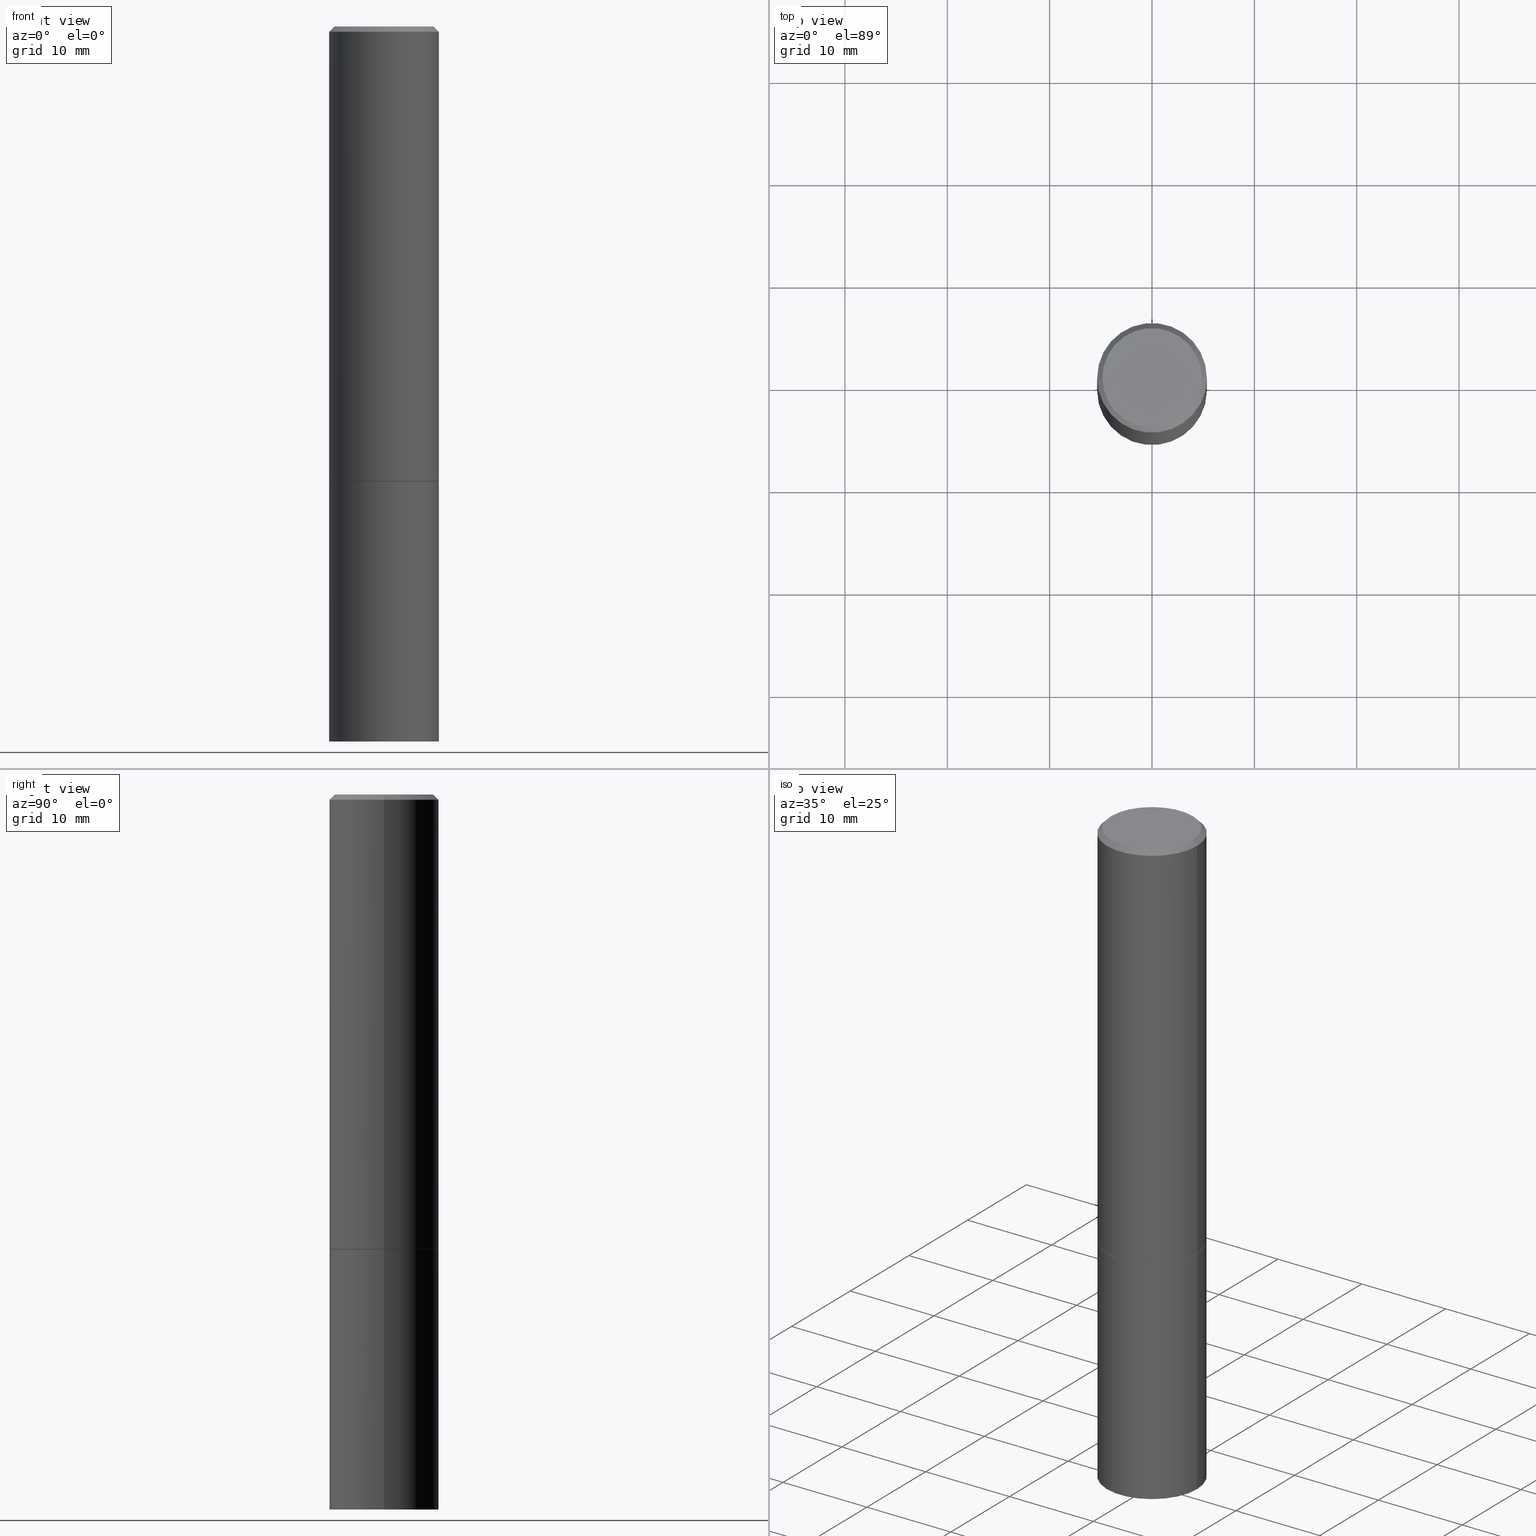
[diagram: canonical four-view strip — front | top / right | iso, engineering-drawing reading convention]
A machine part, canonical four-view strip (front | top / right | iso — engineering-drawing reading convention). The complete STEP part file that produces these views, byte-faithful:
ISO-10303-21;
HEADER;
FILE_DESCRIPTION (( 'STEP AP203' ),
    '1' );
FILE_NAME ('39153.STEP',
    '2023-03-21T20:59:00',
    ( '' ),
    ( '' ),
    'SwSTEP 2.0',
    'SolidWorks 2022',
    '' );
FILE_SCHEMA (( 'CONFIG_CONTROL_DESIGN' ));
ENDSEC;

DATA;
#1 = CARTESIAN_POINT ( 'NONE',  ( 4.279570410823989044E-29, -6.110092342975505460E-15, -1.750000000000000222 ) ) ;
#2 = VECTOR ( 'NONE', #273, 39.37007874015748143 ) ;
#3 = EDGE_CURVE ( 'NONE', #247, #153, #149, .T. ) ;
#4 = EDGE_CURVE ( 'NONE', #153, #339, #309, .T. ) ;
#5 = DIRECTION ( 'NONE',  ( 1.000000000000000000, -6.982962677686266711E-15, 0.000000000000000000 ) ) ;
#6 = FACE_OUTER_BOUND ( 'NONE', #129, .T. ) ;
#7 = ORIENTED_EDGE ( 'NONE', *, *, #42, .F. ) ;
#8 = CARTESIAN_POINT ( 'NONE',  ( 0.000000000000000000, 0.000000000000000000, 0.000000000000000000 ) ) ;
#9 = AXIS2_PLACEMENT_3D ( 'NONE', #161, #134, #379 ) ;
#10 = APPROVAL_DATE_TIME ( #366, #45 ) ;
#11 = DATE_AND_TIME ( #330, #357 ) ;
#12 = CARTESIAN_POINT ( 'NONE',  ( 0.000000000000000000, 0.000000000000000000, 0.000000000000000000 ) ) ;
#13 = MECHANICAL_CONTEXT ( 'NONE', #363, 'mechanical' ) ;
#14 = ORIENTED_EDGE ( 'NONE', *, *, #124, .F. ) ;
#15 = CIRCLE ( 'NONE', #268, 0.1909499999999998143 ) ;
#16 = LOCAL_TIME ( 16, 59, 0.000000000000000000, #68 ) ;
#17 = EDGE_CURVE ( 'NONE', #157, #35, #105, .T. ) ;
#18 = FACE_OUTER_BOUND ( 'NONE', #99, .T. ) ;
#19 = ORIENTED_EDGE ( 'NONE', *, *, #317, .T. ) ;
#20 = DIRECTION ( 'NONE',  ( 1.000000000000000000, -6.982962677686266711E-15, 0.000000000000000000 ) ) ;
#21 = AXIS2_PLACEMENT_3D ( 'NONE', #250, #346, #321 ) ;
#22 = FACE_OUTER_BOUND ( 'NONE', #66, .T. ) ;
#23 = DIRECTION ( 'NONE',  ( 1.000000000000000000, -6.982962677686265922E-15, 0.000000000000000000 ) ) ;
#24 = DIRECTION ( 'NONE',  ( 2.445468806185136597E-29, -3.491481338843145583E-15, -1.000000000000000000 ) ) ;
#25 = ADVANCED_FACE ( 'NONE', ( #18 ), #315, .T. ) ;
#26 = DIRECTION ( 'NONE',  ( -2.445468806185136597E-29, 3.491481338843145583E-15, 1.000000000000000000 ) ) ;
#27 = UNCERTAINTY_MEASURE_WITH_UNIT (LENGTH_MEASURE( 1.000000000000000082E-05 ), #390, 'distance_accuracy_value', 'NONE');
#28 = ORIENTED_EDGE ( 'NONE', *, *, #298, .T. ) ;
#29 = DIRECTION ( 'NONE',  ( 1.000000000000000000, -6.982962677686266711E-15, 0.000000000000000000 ) ) ;
#30 = EDGE_CURVE ( 'NONE', #35, #214, #304, .T. ) ;
#31 = DIRECTION ( 'NONE',  ( 2.438088387897960049E-29, -3.491481338843145188E-15, -1.000000000000000000 ) ) ;
#32 = CIRCLE ( 'NONE', #21, 0.2109499999999999986 ) ;
#33 = ORIENTED_EDGE ( 'NONE', *, *, #253, .T. ) ;
#34 = DIRECTION ( 'NONE',  ( 1.000000000000000000, -6.982962677686265922E-15, 0.000000000000000000 ) ) ;
#35 = VERTEX_POINT ( 'NONE', #92 ) ;
#36 = DIRECTION ( 'NONE',  ( -2.445468806185136597E-29, 3.491481338843145583E-15, 1.000000000000000000 ) ) ;
#37 = PERSON_AND_ORGANIZATION_ROLE ( 'classification_officer' ) ;
#38 = APPROVAL ( #272, 'UNSPECIFIED' ) ;
#39 = ADVANCED_BREP_SHAPE_REPRESENTATION ( '39153', ( #219, #365, #135 ), #233 ) ;
#40 = VECTOR ( 'NONE', #361, 39.37007874015748143 ) ;
#41 = SECURITY_CLASSIFICATION_LEVEL ( 'unclassified' ) ;
#42 = EDGE_CURVE ( 'NONE', #103, #170, #152, .T. ) ;
#43 = CARTESIAN_POINT ( 'NONE',  ( -0.2109499999999999154, 1.498889901085930741E-15, -1.037649357289271961E-29 ) ) ;
#44 = APPROVAL_STATUS ( 'not_yet_approved' ) ;
#45 = APPROVAL ( #212, 'UNSPECIFIED' ) ;
#46 = ORIENTED_EDGE ( 'NONE', *, *, #253, .F. ) ;
#47 = APPROVAL_ROLE ( '' ) ;
#48 = ORIENTED_EDGE ( 'NONE', *, *, #242, .F. ) ;
#49 = AXIS2_PLACEMENT_3D ( 'NONE', #160, #26, #108 ) ;
#50 = CARTESIAN_POINT ( 'NONE',  ( 0.000000000000000000, 0.000000000000000000, 0.000000000000000000 ) ) ;
#51 = CARTESIAN_POINT ( 'NONE',  ( -0.2109499999999999986, -1.589325343120829965E-15, -1.748999999999999888 ) ) ;
#52 = CARTESIAN_POINT ( 'NONE',  ( 1.029763029858249130E-27, -1.470228691156104013E-13, -42.10902331911772478 ) ) ;
#53 = AXIS2_PLACEMENT_3D ( 'NONE', #75, #352, #140 ) ;
#54 = CARTESIAN_POINT ( 'NONE',  ( 1.333396723304191166E-15, 0.1909499999999998143, -6.666983616520979495E-16 ) ) ;
#55 = CARTESIAN_POINT ( 'NONE',  ( 4.279570410823988484E-29, -6.110092342975504671E-15, -1.750000000000000000 ) ) ;
#56 = EDGE_CURVE ( 'NONE', #96, #267, #77, .T. ) ;
#57 = CARTESIAN_POINT ( 'NONE',  ( 0.2109499999999998321, -1.104879573444855385E-14, -2.750000000000000000 ) ) ;
#58 = DIRECTION ( 'NONE',  ( 0.7071067811864267805, -2.468850131080992517E-15, 0.7071067811866682540 ) ) ;
#59 = CARTESIAN_POINT ( 'NONE',  ( 6.725039217009124520E-29, -9.601573681818649859E-15, -2.750000000000000000 ) ) ;
#60 = PLANE ( 'NONE',  #305 ) ;
#61 = CIRCLE ( 'NONE', #118, 0.2109499999999998043 ) ;
#62 = DIRECTION ( 'NONE',  ( 1.000000000000000000, -6.982962677686266711E-15, 0.000000000000000000 ) ) ;
#63 = CARTESIAN_POINT ( 'NONE',  ( 0.1909499999999998143, -1.413531886040619524E-15, 9.604942887381093528E-30 ) ) ;
#64 = CC_DESIGN_DATE_AND_TIME_ASSIGNMENT ( #332, #180, ( #223 ) ) ;
#65 = PERSON_AND_ORGANIZATION_ROLE ( 'design_supplier' ) ;
#66 = EDGE_LOOP ( 'NONE', ( #278, #281 ) ) ;
#67 = ORIENTED_EDGE ( 'NONE', *, *, #213, .F. ) ;
#68 = COORDINATED_UNIVERSAL_TIME_OFFSET ( 5, 0, .BEHIND. ) ;
#69 = ADVANCED_FACE ( 'NONE', ( #22 ), #224, .F. ) ;
#70 = PERSON_AND_ORGANIZATION ( #300, #179 ) ;
#71 = ORIENTED_EDGE ( 'NONE', *, *, #376, .F. ) ;
#72 = ORIENTED_EDGE ( 'NONE', *, *, #276, .T. ) ;
#73 = FACE_OUTER_BOUND ( 'NONE', #378, .T. ) ;
#74 = LINE ( 'NONE', #119, #156 ) ;
#75 = CARTESIAN_POINT ( 'NONE',  ( 1.029763029858249130E-27, -1.470228691156104013E-13, -42.10902331911772478 ) ) ;
#76 = AXIS2_PLACEMENT_3D ( 'NONE', #50, #159, #284 ) ;
#77 = CIRCLE ( 'NONE', #226, 0.1909499999999998143 ) ;
#78 = ADVANCED_FACE ( 'NONE', ( #165 ), #167, .T. ) ;
#79 = CARTESIAN_POINT ( 'NONE',  ( 4.279570410823988484E-29, -6.110092342975504671E-15, -1.750000000000000000 ) ) ;
#80 = CARTESIAN_POINT ( 'NONE',  ( 4.890937612370285420E-31, -6.982962677686308865E-17, -0.02000000000000005246 ) ) ;
#81 = LINE ( 'NONE', #287, #384 ) ;
#82 = LINE ( 'NONE', #294, #255 ) ;
#83 = ORIENTED_EDGE ( 'NONE', *, *, #213, .T. ) ;
#84 = VECTOR ( 'NONE', #58, 39.37007874015748143 ) ;
#85 = CC_DESIGN_APPROVAL ( #45, ( #274 ) ) ;
#86 = LINE ( 'NONE', #264, #356 ) ;
#87 = ORIENTED_EDGE ( 'NONE', *, *, #30, .F. ) ;
#88 = DIRECTION ( 'NONE',  ( -1.000000000000000000, 6.982962677686265922E-15, -4.876176775795935793E-29 ) ) ;
#89 = ORIENTED_EDGE ( 'NONE', *, *, #115, .T. ) ;
#90 = DIRECTION ( 'NONE',  ( -2.445468806185136597E-29, 3.491481338843145583E-15, 1.000000000000000000 ) ) ;
#91 = ORIENTED_EDGE ( 'NONE', *, *, #4, .T. ) ;
#92 = CARTESIAN_POINT ( 'NONE',  ( -0.2109499999999999986, -6.356943111311146524E-15, -1.750000000000000000 ) ) ;
#93 = AXIS2_PLACEMENT_3D ( 'NONE', #136, #117, #23 ) ;
#94 = CARTESIAN_POINT ( 'NONE',  ( -0.2109499999999998043, 1.403226350081053478E-15, -0.02000000000000005246 ) ) ;
#95 = ADVANCED_FACE ( 'NONE', ( #319 ), #350, .F. ) ;
#96 = VERTEX_POINT ( 'NONE', #383 ) ;
#97 = ORIENTED_EDGE ( 'NONE', *, *, #173, .T. ) ;
#98 = PERSON_AND_ORGANIZATION_ROLE ( 'creator' ) ;
#99 = EDGE_LOOP ( 'NONE', ( #310, #91, #67, #71 ) ) ;
#100 = ADVANCED_FACE ( 'NONE', ( #73 ), #101, .T. ) ;
#101 = CONICAL_SURFACE ( 'NONE', #93, 0.2099499999999999977, 0.7853981633972775267 ) ;
#102 = LOCAL_TIME ( 16, 59, 0.000000000000000000, #206 ) ;
#103 = VERTEX_POINT ( 'NONE', #288 ) ;
#104 = APPROVAL_ROLE ( '' ) ;
#105 = LINE ( 'NONE', #184, #194 ) ;
#106 = CARTESIAN_POINT ( 'NONE',  ( 1.871583227373026595E-19, -9.562973885565287622E-15, -2.738944578960243792 ) ) ;
#107 = EDGE_LOOP ( 'NONE', ( #7, #364, #48 ) ) ;
#108 = DIRECTION ( 'NONE',  ( 1.000000000000000000, -6.982962677686265922E-15, 4.876176775795935793E-29 ) ) ;
#109 = CLOSED_SHELL ( 'NONE', ( #145, #25, #78, #238, #171, #100, #347, #69 ) ) ;
#110 = CONICAL_SURFACE ( 'NONE', #295, 751.2258538476739886, 1.518436449235074148 ) ;
#111 = CC_DESIGN_PERSON_AND_ORGANIZATION_ASSIGNMENT ( #302, #37, ( #223 ) ) ;
#112 = FACE_OUTER_BOUND ( 'NONE', #229, .T. ) ;
#113 = ADVANCED_FACE ( 'NONE', ( #254 ), #110, .F. ) ;
#114 = DIRECTION ( 'NONE',  ( 2.445468806185136597E-29, -3.491481338843145583E-15, -1.000000000000000000 ) ) ;
#115 = EDGE_CURVE ( 'NONE', #301, #207, #144, .T. ) ;
#116 = EDGE_CURVE ( 'NONE', #157, #170, #32, .T. ) ;
#117 = DIRECTION ( 'NONE',  ( -2.445468806185136597E-29, 3.491481338843145583E-15, 1.000000000000000000 ) ) ;
#118 = AXIS2_PLACEMENT_3D ( 'NONE', #175, #325, #62 ) ;
#119 = CARTESIAN_POINT ( 'NONE',  ( -1.871583226033426040E-19, -9.562973885565287622E-15, -2.738944578960243792 ) ) ;
#120 = DIRECTION ( 'NONE',  ( 0.7071067811865464625, -7.319954787623252890E-15, -0.7071067811865485719 ) ) ;
#121 = LENGTH_MEASURE_WITH_UNIT ( LENGTH_MEASURE( 0.02539999999999999897 ), #323 );
#122 = ORIENTED_EDGE ( 'NONE', *, *, #241, .F. ) ;
#123 =( NAMED_UNIT ( * ) SI_UNIT ( $, .STERADIAN. ) SOLID_ANGLE_UNIT ( ) );
#124 = EDGE_CURVE ( 'NONE', #103, #157, #74, .T. ) ;
#125 = CARTESIAN_POINT ( 'NONE',  ( 0.2099499999999999977, -7.576165357155737011E-15, -1.750000000000000222 ) ) ;
#126 = VECTOR ( 'NONE', #259, 39.37007874015748143 ) ;
#127 = PERSON_AND_ORGANIZATION ( #300, #179 ) ;
#128 = PERSON_AND_ORGANIZATION ( #300, #179 ) ;
#129 = EDGE_LOOP ( 'NONE', ( #303, #329, #33, #87 ) ) ;
#130 = APPLICATION_PROTOCOL_DEFINITION ( 'international standard', 'config_control_design', 1994, #386 ) ;
#131 = CONICAL_SURFACE ( 'NONE', #380, 0.2109499999999998043, 0.7853981633974468357 ) ;
#132 = EDGE_LOOP ( 'NONE', ( #198, #183, #333, #297 ) ) ;
#133 = ORIENTED_EDGE ( 'NONE', *, *, #377, .F. ) ;
#134 = DIRECTION ( 'NONE',  ( -2.445468806185136597E-29, 3.491481338843145583E-15, 1.000000000000000000 ) ) ;
#135 = AXIS2_PLACEMENT_3D ( 'NONE', #8, #277, #244 ) ;
#136 = CARTESIAN_POINT ( 'NONE',  ( 4.279570410823989044E-29, -6.110092342975505460E-15, -1.750000000000000222 ) ) ;
#137 = DIRECTION ( 'NONE',  ( 1.000000000000000000, -6.982962677686266711E-15, 4.876176775795935793E-29 ) ) ;
#138 = DIRECTION ( 'NONE',  ( 1.000000000000000000, -6.982962677686266711E-15, 4.876176775795935793E-29 ) ) ;
#139 = CONICAL_SURFACE ( 'NONE', #9, 0.2099499999999999977, 0.7853981633972775267 ) ;
#140 = DIRECTION ( 'NONE',  ( -1.000000000000000000, 6.982962677686266711E-15, 0.000000000000000000 ) ) ;
#141 = EDGE_LOOP ( 'NONE', ( #358, #246 ) ) ;
#142 = CARTESIAN_POINT ( 'NONE',  ( 0.2109499999999999154, -1.473055976857917171E-15, 1.028629490854152208E-29 ) ) ;
#143 = AXIS2_PLACEMENT_3D ( 'NONE', #369, #237, #210 ) ;
#144 = CIRCLE ( 'NONE', #283, 0.2099499999999999977 ) ;
#145 = ADVANCED_FACE ( 'NONE', ( #318 ), #139, .T. ) ;
#146 = PRODUCT_DEFINITION_SHAPE ( 'NONE', 'NONE',  #274 ) ;
#147 = DIRECTION ( 'NONE',  ( -2.445468806185136877E-29, 3.491481338843145188E-15, 1.000000000000000000 ) ) ;
#148 = PERSON_AND_ORGANIZATION ( #300, #179 ) ;
#149 = CIRCLE ( 'NONE', #143, 0.2109499999999999986 ) ;
#150 = CIRCLE ( 'NONE', #243, 0.2109499999999999986 ) ;
#151 = DATE_AND_TIME ( #311, #217 ) ;
#152 = LINE ( 'NONE', #106, #2 ) ;
#153 = VERTEX_POINT ( 'NONE', #51 ) ;
#154 = EDGE_LOOP ( 'NONE', ( #133, #331 ) ) ;
#155 = COORDINATED_UNIVERSAL_TIME_OFFSET ( 5, 0, .BEHIND. ) ;
#156 = VECTOR ( 'NONE', #349, 39.37007874015748143 ) ;
#157 = VERTEX_POINT ( 'NONE', #353 ) ;
#158 = EDGE_CURVE ( 'NONE', #301, #153, #81, .T. ) ;
#159 = DIRECTION ( 'NONE',  ( -2.445468806185136597E-29, 3.491481338843145583E-15, 1.000000000000000000 ) ) ;
#160 = CARTESIAN_POINT ( 'NONE',  ( 0.000000000000000000, 0.000000000000000000, 0.000000000000000000 ) ) ;
#161 = CARTESIAN_POINT ( 'NONE',  ( 4.279570410823989044E-29, -6.110092342975505460E-15, -1.750000000000000222 ) ) ;
#162 = CC_DESIGN_DATE_AND_TIME_ASSIGNMENT ( #151, #239, ( #274 ) ) ;
#163 = AXIS2_PLACEMENT_3D ( 'NONE', #197, #31, #88 ) ;
#164 = DIRECTION ( 'NONE',  ( -2.445468806185136597E-29, 3.491481338843145583E-15, 1.000000000000000000 ) ) ;
#165 = FACE_OUTER_BOUND ( 'NONE', #232, .T. ) ;
#166 = FACE_OUTER_BOUND ( 'NONE', #271, .T. ) ;
#167 = CONICAL_SURFACE ( 'NONE', #188, 0.2109499999999998043, 0.7853981633974468357 ) ;
#168 = CC_DESIGN_PERSON_AND_ORGANIZATION_ASSIGNMENT ( #265, #65, ( #344 ) ) ;
#169 = FACE_OUTER_BOUND ( 'NONE', #141, .T. ) ;
#170 = VERTEX_POINT ( 'NONE', #57 ) ;
#171 = ADVANCED_FACE ( 'NONE', ( #166 ), #289, .T. ) ;
#172 = FACE_OUTER_BOUND ( 'NONE', #154, .T. ) ;
#173 = EDGE_CURVE ( 'NONE', #153, #247, #150, .T. ) ;
#174 = AXIS2_PLACEMENT_3D ( 'NONE', #59, #90, #362 ) ;
#175 = CARTESIAN_POINT ( 'NONE',  ( 4.890937612370285420E-31, -6.982962677686308865E-17, -0.02000000000000005246 ) ) ;
#176 = ORIENTED_EDGE ( 'NONE', *, *, #298, .F. ) ;
#177 = CARTESIAN_POINT ( 'NONE',  ( -0.2109499999999998043, 1.403226350081053478E-15, -0.02000000000000005246 ) ) ;
#178 = ORIENTED_EDGE ( 'NONE', *, *, #158, .F. ) ;
#179 = ORGANIZATION ( 'UNSPECIFIED', 'UNSPECIFIED', '' ) ;
#180 = DATE_TIME_ROLE ( 'classification_date' ) ;
#181 = CALENDAR_DATE ( 2023, 21, 3 ) ;
#182 = PERSON_AND_ORGANIZATION_ROLE ( 'creator' ) ;
#183 = ORIENTED_EDGE ( 'NONE', *, *, #158, .T. ) ;
#184 = CARTESIAN_POINT ( 'NONE',  ( -0.2109499999999999986, 1.498889901085931332E-15, -1.037649357289272522E-29 ) ) ;
#185 = CARTESIAN_POINT ( 'NONE',  ( 0.2099499999999999977, -7.576165357155737011E-15, -1.750000000000000222 ) ) ;
#186 = DIRECTION ( 'NONE',  ( -1.000000000000000000, 6.982962677686265922E-15, -4.876176775795935793E-29 ) ) ;
#187 = CARTESIAN_POINT ( 'NONE',  ( 4.890937612370285420E-31, -6.982962677686308865E-17, -0.02000000000000005246 ) ) ;
#188 = AXIS2_PLACEMENT_3D ( 'NONE', #187, #252, #190 ) ;
#189 = LOCAL_TIME ( 16, 59, 0.000000000000000000, #374 ) ;
#190 = DIRECTION ( 'NONE',  ( -1.000000000000000000, 6.982962677686266711E-15, 0.000000000000000000 ) ) ;
#191 = CARTESIAN_POINT ( 'NONE',  ( 4.279570410823989044E-29, -6.110092342975505460E-15, -1.750000000000000222 ) ) ;
#192 = PRODUCT ( '39153', '39153', '', ( #13 ) ) ;
#193 = CARTESIAN_POINT ( 'NONE',  ( 0.000000000000000000, 0.000000000000000000, 0.000000000000000000 ) ) ;
#194 = VECTOR ( 'NONE', #312, 39.37007874015748143 ) ;
#195 = AXIS2_PLACEMENT_3D ( 'NONE', #55, #355, #29 ) ;
#196 = ORIENTED_EDGE ( 'NONE', *, *, #376, .T. ) ;
#197 = CARTESIAN_POINT ( 'NONE',  ( 1.473055976857960361E-15, 0.2109499999999938924, -1.750000000000000666 ) ) ;
#198 = ORIENTED_EDGE ( 'NONE', *, *, #377, .T. ) ;
#199 = CARTESIAN_POINT ( 'NONE',  ( 0.2109499999999998043, -1.517051679406766110E-15, -0.02000000000000005246 ) ) ;
#200 = CC_DESIGN_PERSON_AND_ORGANIZATION_ASSIGNMENT ( #148, #98, ( #344 ) ) ;
#201 = ORIENTED_EDGE ( 'NONE', *, *, #173, .F. ) ;
#202 = LINE ( 'NONE', #94, #40 ) ;
#203 = ORIENTED_EDGE ( 'NONE', *, *, #308, .F. ) ;
#204 = LINE ( 'NONE', #125, #84 ) ;
#205 = ORIENTED_EDGE ( 'NONE', *, *, #116, .F. ) ;
#206 = COORDINATED_UNIVERSAL_TIME_OFFSET ( 5, 0, .BEHIND. ) ;
#207 = VERTEX_POINT ( 'NONE', #185 ) ;
#208 = CIRCLE ( 'NONE', #334, 0.2099499999999999977 ) ;
#209 = CALENDAR_DATE ( 2023, 21, 3 ) ;
#210 = DIRECTION ( 'NONE',  ( 1.000000000000000000, -6.982962677686266711E-15, 0.000000000000000000 ) ) ;
#211 = EDGE_CURVE ( 'NONE', #267, #96, #15, .T. ) ;
#212 = APPROVAL_STATUS ( 'not_yet_approved' ) ;
#213 = EDGE_CURVE ( 'NONE', #337, #339, #222, .T. ) ;
#214 = VERTEX_POINT ( 'NONE', #381 ) ;
#215 = CIRCLE ( 'NONE', #195, 0.2109499999999999986 ) ;
#216 = CARTESIAN_POINT ( 'NONE',  ( 0.000000000000000000, 0.000000000000000000, 0.000000000000000000 ) ) ;
#217 = LOCAL_TIME ( 16, 59, 0.000000000000000000, #368 ) ;
#218 = DIRECTION ( 'NONE',  ( 2.438088387897960049E-29, -3.491481338843145188E-15, -1.000000000000000000 ) ) ;
#219 = MANIFOLD_SOLID_BREP ( 'Body-Move/Copy2[1]', #322 ) ;
#220 = DIRECTION ( 'NONE',  ( -1.000000000000000000, 6.982962677686266711E-15, 0.000000000000000000 ) ) ;
#221 = CARTESIAN_POINT ( 'NONE',  ( 4.277124942017804002E-29, -6.106600861636660875E-15, -1.748999999999999888 ) ) ;
#222 = CIRCLE ( 'NONE', #290, 0.2109499999999998043 ) ;
#223 = SECURITY_CLASSIFICATION ( '', '', #41 ) ;
#224 = PLANE ( 'NONE',  #260 ) ;
#225 = DIRECTION ( 'NONE',  ( 1.000000000000000000, -6.982962677686266711E-15, 4.876176775795936353E-29 ) ) ;
#226 = AXIS2_PLACEMENT_3D ( 'NONE', #12, #340, #138 ) ;
#227 = EDGE_LOOP ( 'NONE', ( #367, #235, #122, #46 ) ) ;
#228 = CC_DESIGN_PERSON_AND_ORGANIZATION_ASSIGNMENT ( #70, #182, ( #274 ) ) ;
#229 = EDGE_LOOP ( 'NONE', ( #292, #360, #28, #375 ) ) ;
#230 = CARTESIAN_POINT ( 'NONE',  ( 0.2109499999999999986, -7.579656838494578440E-15, -1.748999999999999888 ) ) ;
#231 = CARTESIAN_POINT ( 'NONE',  ( -0.2099499999999999977, -4.613009414898952931E-15, -1.750000000000000222 ) ) ;
#232 = EDGE_LOOP ( 'NONE', ( #371, #72, #83, #176 ) ) ;
#233 =( GEOMETRIC_REPRESENTATION_CONTEXT ( 3 ) GLOBAL_UNCERTAINTY_ASSIGNED_CONTEXT ( ( #27 ) ) GLOBAL_UNIT_ASSIGNED_CONTEXT ( ( #390, #359, #123 ) ) REPRESENTATION_CONTEXT ( 'NONE', 'WORKASPACE' ) );
#234 = PERSON_AND_ORGANIZATION_ROLE ( 'design_owner' ) ;
#235 = ORIENTED_EDGE ( 'NONE', *, *, #17, .T. ) ;
#236 = APPROVAL_DATE_TIME ( #11, #348 ) ;
#237 = DIRECTION ( 'NONE',  ( -2.445468806185136597E-29, 3.491481338843145583E-15, 1.000000000000000000 ) ) ;
#238 = ADVANCED_FACE ( 'NONE', ( #112 ), #131, .T. ) ;
#239 = DATE_TIME_ROLE ( 'creation_date' ) ;
#240 = DIMENSIONAL_EXPONENTS ( 1.000000000000000000, 0.000000000000000000, 0.000000000000000000, 0.000000000000000000, 0.000000000000000000, 0.000000000000000000, 0.000000000000000000 ) ;
#241 = EDGE_CURVE ( 'NONE', #214, #35, #215, .T. ) ;
#242 = EDGE_CURVE ( 'NONE', #170, #157, #351, .T. ) ;
#243 = AXIS2_PLACEMENT_3D ( 'NONE', #221, #320, #285 ) ;
#244 = DIRECTION ( 'NONE',  ( 1.000000000000000000, 0.000000000000000000, 0.000000000000000000 ) ) ;
#245 = CC_DESIGN_SECURITY_CLASSIFICATION ( #223, ( #344 ) ) ;
#246 = ORIENTED_EDGE ( 'NONE', *, *, #30, .T. ) ;
#247 = VERTEX_POINT ( 'NONE', #230 ) ;
#248 = AXIS2_PLACEMENT_3D ( 'NONE', #193, #258, #225 ) ;
#249 = DIRECTION ( 'NONE',  ( -0.7071067811864267805, 7.493145998869918709E-15, 0.7071067811866682540 ) ) ;
#250 = CARTESIAN_POINT ( 'NONE',  ( 6.725039217009124520E-29, -9.601573681818649859E-15, -2.750000000000000000 ) ) ;
#251 = SHAPE_DEFINITION_REPRESENTATION ( #146, #39 ) ;
#252 = DIRECTION ( 'NONE',  ( 2.445468806185136597E-29, -3.491481338843145583E-15, -1.000000000000000000 ) ) ;
#253 = EDGE_CURVE ( 'NONE', #170, #214, #86, .T. ) ;
#254 = FACE_OUTER_BOUND ( 'NONE', #275, .T. ) ;
#255 = VECTOR ( 'NONE', #120, 39.37007874015748143 ) ;
#256 = DIRECTION ( 'NONE',  ( 1.000000000000000000, -6.982962677686265922E-15, 4.876176775795935793E-29 ) ) ;
#257 = APPROVAL_DATE_TIME ( #389, #38 ) ;
#258 = DIRECTION ( 'NONE',  ( -2.445468806185136597E-29, 3.491481338843145583E-15, 1.000000000000000000 ) ) ;
#259 = DIRECTION ( 'NONE',  ( -2.445468806185136877E-29, 3.491481338843145188E-15, 1.000000000000000000 ) ) ;
#260 = AXIS2_PLACEMENT_3D ( 'NONE', #54, #218, #186 ) ;
#261 = APPROVAL_PERSON_ORGANIZATION ( #307, #38, #336 ) ;
#262 = DIRECTION ( 'NONE',  ( 1.000000000000000000, -6.982962677686266711E-15, 4.876176775795936353E-29 ) ) ;
#263 = DIRECTION ( 'NONE',  ( -2.445468806185136597E-29, 3.491481338843145583E-15, 1.000000000000000000 ) ) ;
#264 = CARTESIAN_POINT ( 'NONE',  ( 0.2109499999999999986, -1.473055976857917959E-15, 1.028629490854152768E-29 ) ) ;
#265 = PERSON_AND_ORGANIZATION ( #300, #179 ) ;
#266 = CC_DESIGN_PERSON_AND_ORGANIZATION_ASSIGNMENT ( #127, #234, ( #192 ) ) ;
#267 = VERTEX_POINT ( 'NONE', #63 ) ;
#268 = AXIS2_PLACEMENT_3D ( 'NONE', #216, #345, #137 ) ;
#269 = CC_DESIGN_APPROVAL ( #348, ( #344 ) ) ;
#270 = APPLICATION_PROTOCOL_DEFINITION ( 'international standard', 'config_control_design', 1994, #363 ) ;
#271 = EDGE_LOOP ( 'NONE', ( #326, #97, #196, #203 ) ) ;
#272 = APPROVAL_STATUS ( 'not_yet_approved' ) ;
#273 = DIRECTION ( 'NONE',  ( 0.9986295347545742773, -7.033825938271997912E-15, -0.05233595624293643084 ) ) ;
#274 = PRODUCT_DEFINITION ( 'UNKNOWN', '', #344, #286 ) ;
#275 = EDGE_LOOP ( 'NONE', ( #14, #280, #205 ) ) ;
#276 = EDGE_CURVE ( 'NONE', #267, #337, #82, .T. ) ;
#277 = DIRECTION ( 'NONE',  ( 0.000000000000000000, 0.000000000000000000, 1.000000000000000000 ) ) ;
#278 = ORIENTED_EDGE ( 'NONE', *, *, #56, .T. ) ;
#279 = AXIS2_PLACEMENT_3D ( 'NONE', #79, #263, #5 ) ;
#280 = ORIENTED_EDGE ( 'NONE', *, *, #42, .T. ) ;
#281 = ORIENTED_EDGE ( 'NONE', *, *, #211, .T. ) ;
#282 = CARTESIAN_POINT ( 'NONE',  ( 4.890937612370285420E-31, -6.982962677686308865E-17, -0.02000000000000005246 ) ) ;
#283 = AXIS2_PLACEMENT_3D ( 'NONE', #191, #164, #385 ) ;
#284 = DIRECTION ( 'NONE',  ( 1.000000000000000000, -6.982962677686265922E-15, 4.876176775795935793E-29 ) ) ;
#285 = DIRECTION ( 'NONE',  ( 1.000000000000000000, -6.982962677686266711E-15, 0.000000000000000000 ) ) ;
#286 = DESIGN_CONTEXT ( 'detailed design', #386, 'design' ) ;
#287 = CARTESIAN_POINT ( 'NONE',  ( -0.2099499999999999977, -4.618307869247174544E-15, -1.750000000000000222 ) ) ;
#288 = CARTESIAN_POINT ( 'NONE',  ( 6.698134221675361701E-29, -9.562786727242617886E-15, -2.738944578960243792 ) ) ;
#289 = CYLINDRICAL_SURFACE ( 'NONE', #49, 0.2109499999999999154 ) ;
#290 = AXIS2_PLACEMENT_3D ( 'NONE', #282, #382, #20 ) ;
#291 = CYLINDRICAL_SURFACE ( 'NONE', #248, 0.2109499999999999986 ) ;
#292 = ORIENTED_EDGE ( 'NONE', *, *, #276, .F. ) ;
#293 = DIRECTION ( 'NONE',  ( -2.438088387897960049E-29, 3.491481338843145188E-15, 1.000000000000000000 ) ) ;
#294 = CARTESIAN_POINT ( 'NONE',  ( 0.2109499999999998043, -1.517051679406766110E-15, -0.02000000000000005246 ) ) ;
#295 = AXIS2_PLACEMENT_3D ( 'NONE', #52, #24, #316 ) ;
#296 = DIRECTION ( 'NONE',  ( -2.445468806185136597E-29, 3.491481338843145583E-15, 1.000000000000000000 ) ) ;
#297 = ORIENTED_EDGE ( 'NONE', *, *, #317, .F. ) ;
#298 = EDGE_CURVE ( 'NONE', #96, #339, #202, .T. ) ;
#299 = CYLINDRICAL_SURFACE ( 'NONE', #314, 0.2109499999999999986 ) ;
#300 = PERSON ( 'UNSPECIFIED', 'UNSPECIFIED', 'UNSPECIFIED', ('UNSPECIFIED'), ('UNSPECIFIED'), ('UNSPECIFIED') ) ;
#301 = VERTEX_POINT ( 'NONE', #231 ) ;
#302 = PERSON_AND_ORGANIZATION ( #300, #179 ) ;
#303 = ORIENTED_EDGE ( 'NONE', *, *, #17, .F. ) ;
#304 = CIRCLE ( 'NONE', #279, 0.2109499999999999986 ) ;
#305 = AXIS2_PLACEMENT_3D ( 'NONE', #1, #293, #256 ) ;
#306 = ADVANCED_FACE ( 'NONE', ( #6 ), #291, .T. ) ;
#307 = PERSON_AND_ORGANIZATION ( #300, #179 ) ;
#308 = EDGE_CURVE ( 'NONE', #339, #337, #61, .T. ) ;
#309 = LINE ( 'NONE', #43, #372 ) ;
#310 = ORIENTED_EDGE ( 'NONE', *, *, #3, .T. ) ;
#311 = CALENDAR_DATE ( 2023, 21, 3 ) ;
#312 = DIRECTION ( 'NONE',  ( -2.445468806185136877E-29, 3.491481338843145188E-15, 1.000000000000000000 ) ) ;
#313 = ADVANCED_FACE ( 'NONE', ( #169 ), #327, .F. ) ;
#314 = AXIS2_PLACEMENT_3D ( 'NONE', #324, #36, #262 ) ;
#315 = CYLINDRICAL_SURFACE ( 'NONE', #76, 0.2109499999999999154 ) ;
#316 = DIRECTION ( 'NONE',  ( -1.000000000000000000, 6.982962677686266711E-15, 0.000000000000000000 ) ) ;
#317 = EDGE_CURVE ( 'NONE', #207, #247, #204, .T. ) ;
#318 = FACE_OUTER_BOUND ( 'NONE', #132, .T. ) ;
#319 = FACE_OUTER_BOUND ( 'NONE', #107, .T. ) ;
#320 = DIRECTION ( 'NONE',  ( -2.445468806185136597E-29, 3.491481338843145583E-15, 1.000000000000000000 ) ) ;
#321 = DIRECTION ( 'NONE',  ( 1.000000000000000000, -6.982962677686266711E-15, 0.000000000000000000 ) ) ;
#322 = CLOSED_SHELL ( 'NONE', ( #342, #113, #95, #306, #313 ) ) ;
#323 =( LENGTH_UNIT ( ) NAMED_UNIT ( * ) SI_UNIT ( $, .METRE. ) );
#324 = CARTESIAN_POINT ( 'NONE',  ( 0.000000000000000000, 0.000000000000000000, 0.000000000000000000 ) ) ;
#325 = DIRECTION ( 'NONE',  ( -2.445468806185136597E-29, 3.491481338843145583E-15, 1.000000000000000000 ) ) ;
#326 = ORIENTED_EDGE ( 'NONE', *, *, #4, .F. ) ;
#327 = PLANE ( 'NONE',  #163 ) ;
#328 = FACE_OUTER_BOUND ( 'NONE', #227, .T. ) ;
#329 = ORIENTED_EDGE ( 'NONE', *, *, #116, .T. ) ;
#330 = CALENDAR_DATE ( 2023, 21, 3 ) ;
#331 = ORIENTED_EDGE ( 'NONE', *, *, #115, .F. ) ;
#332 = DATE_AND_TIME ( #209, #102 ) ;
#333 = ORIENTED_EDGE ( 'NONE', *, *, #3, .F. ) ;
#334 = AXIS2_PLACEMENT_3D ( 'NONE', #387, #296, #34 ) ;
#335 = CC_DESIGN_APPROVAL ( #38, ( #223 ) ) ;
#336 = APPROVAL_ROLE ( '' ) ;
#337 = VERTEX_POINT ( 'NONE', #199 ) ;
#338 = CALENDAR_DATE ( 2023, 21, 3 ) ;
#339 = VERTEX_POINT ( 'NONE', #177 ) ;
#340 = DIRECTION ( 'NONE',  ( -2.445468806185136597E-29, 3.491481338843145583E-15, 1.000000000000000000 ) ) ;
#341 = DIRECTION ( 'NONE',  ( -2.445468806185136877E-29, 3.491481338843145188E-15, 1.000000000000000000 ) ) ;
#342 = ADVANCED_FACE ( 'NONE', ( #328 ), #299, .T. ) ;
#343 = APPROVAL_PERSON_ORGANIZATION ( #128, #45, #104 ) ;
#344 = PRODUCT_DEFINITION_FORMATION_WITH_SPECIFIED_SOURCE ( 'ANY', '', #192, .NOT_KNOWN. ) ;
#345 = DIRECTION ( 'NONE',  ( -2.445468806185136597E-29, 3.491481338843145583E-15, 1.000000000000000000 ) ) ;
#346 = DIRECTION ( 'NONE',  ( -2.445468806185136597E-29, 3.491481338843145583E-15, 1.000000000000000000 ) ) ;
#347 = ADVANCED_FACE ( 'NONE', ( #172 ), #60, .F. ) ;
#348 = APPROVAL ( #44, 'UNSPECIFIED' ) ;
#349 = DIRECTION ( 'NONE',  ( -0.9986295347545742773, 6.790662755453668466E-15, -0.05233595624293643084 ) ) ;
#350 = CONICAL_SURFACE ( 'NONE', #53, 751.2258538476739886, 1.518436449235074148 ) ;
#351 = CIRCLE ( 'NONE', #174, 0.2109499999999999986 ) ;
#352 = DIRECTION ( 'NONE',  ( 2.445468806185136597E-29, -3.491481338843145583E-15, -1.000000000000000000 ) ) ;
#353 = CARTESIAN_POINT ( 'NONE',  ( -0.2109499999999998321, -8.128517704960733872E-15, -2.750000000000000000 ) ) ;
#354 = LINE ( 'NONE', #142, #126 ) ;
#355 = DIRECTION ( 'NONE',  ( -2.445468806185136597E-29, 3.491481338843145583E-15, 1.000000000000000000 ) ) ;
#356 = VECTOR ( 'NONE', #147, 39.37007874015748143 ) ;
#357 = LOCAL_TIME ( 16, 59, 0.000000000000000000, #155 ) ;
#358 = ORIENTED_EDGE ( 'NONE', *, *, #241, .T. ) ;
#359 =( NAMED_UNIT ( * ) PLANE_ANGLE_UNIT ( ) SI_UNIT ( $, .RADIAN. ) );
#360 = ORIENTED_EDGE ( 'NONE', *, *, #56, .F. ) ;
#361 = DIRECTION ( 'NONE',  ( -0.7071067811865464625, 2.468850131082245622E-15, -0.7071067811865485719 ) ) ;
#362 = DIRECTION ( 'NONE',  ( 1.000000000000000000, -6.982962677686266711E-15, 0.000000000000000000 ) ) ;
#363 = APPLICATION_CONTEXT ( 'configuration controlled 3d designs of mechanical parts and assemblies' ) ;
#364 = ORIENTED_EDGE ( 'NONE', *, *, #124, .T. ) ;
#365 = MANIFOLD_SOLID_BREP ( 'Body-Move/Copy2[2]', #109 ) ;
#366 = DATE_AND_TIME ( #338, #189 ) ;
#367 = ORIENTED_EDGE ( 'NONE', *, *, #242, .T. ) ;
#368 = COORDINATED_UNIVERSAL_TIME_OFFSET ( 5, 0, .BEHIND. ) ;
#369 = CARTESIAN_POINT ( 'NONE',  ( 4.277124942017804002E-29, -6.106600861636660875E-15, -1.748999999999999888 ) ) ;
#370 = PERSON_AND_ORGANIZATION ( #300, #179 ) ;
#371 = ORIENTED_EDGE ( 'NONE', *, *, #211, .F. ) ;
#372 = VECTOR ( 'NONE', #341, 39.37007874015748143 ) ;
#373 = APPROVAL_PERSON_ORGANIZATION ( #370, #348, #47 ) ;
#374 = COORDINATED_UNIVERSAL_TIME_OFFSET ( 5, 0, .BEHIND. ) ;
#375 = ORIENTED_EDGE ( 'NONE', *, *, #308, .T. ) ;
#376 = EDGE_CURVE ( 'NONE', #247, #337, #354, .T. ) ;
#377 = EDGE_CURVE ( 'NONE', #207, #301, #208, .T. ) ;
#378 = EDGE_LOOP ( 'NONE', ( #178, #89, #19, #201 ) ) ;
#379 = DIRECTION ( 'NONE',  ( 1.000000000000000000, -6.982962677686265922E-15, 0.000000000000000000 ) ) ;
#380 = AXIS2_PLACEMENT_3D ( 'NONE', #80, #114, #220 ) ;
#381 = CARTESIAN_POINT ( 'NONE',  ( 0.2109499999999999986, -7.583148319833423025E-15, -1.750000000000000000 ) ) ;
#382 = DIRECTION ( 'NONE',  ( -2.445468806185136597E-29, 3.491481338843145583E-15, 1.000000000000000000 ) ) ;
#383 = CARTESIAN_POINT ( 'NONE',  ( -0.1909499999999998143, 1.368311536692622420E-15, -9.447056881496592287E-30 ) ) ;
#384 = VECTOR ( 'NONE', #249, 39.37007874015748143 ) ;
#385 = DIRECTION ( 'NONE',  ( 1.000000000000000000, -6.982962677686265922E-15, 0.000000000000000000 ) ) ;
#386 = APPLICATION_CONTEXT ( 'configuration controlled 3d designs of mechanical parts and assemblies' ) ;
#387 = CARTESIAN_POINT ( 'NONE',  ( 4.279570410823989044E-29, -6.110092342975505460E-15, -1.750000000000000222 ) ) ;
#388 = PRODUCT_RELATED_PRODUCT_CATEGORY ( 'detail', '', ( #192 ) ) ;
#389 = DATE_AND_TIME ( #181, #16 ) ;
#390 =( CONVERSION_BASED_UNIT ( 'INCH', #121 ) LENGTH_UNIT ( ) NAMED_UNIT ( #240 ) );
ENDSEC;
END-ISO-10303-21;
